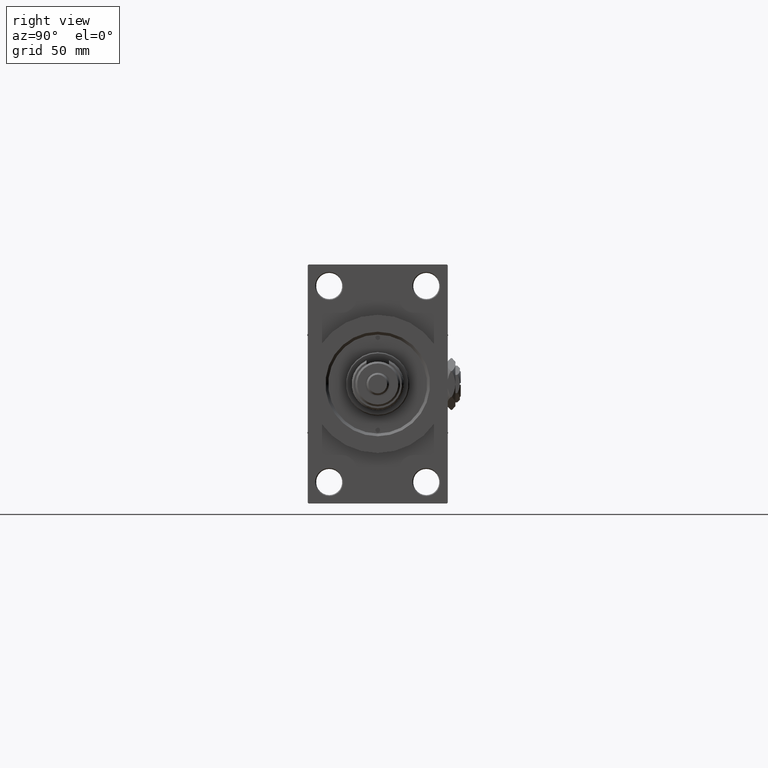
[diagram: clean part render]
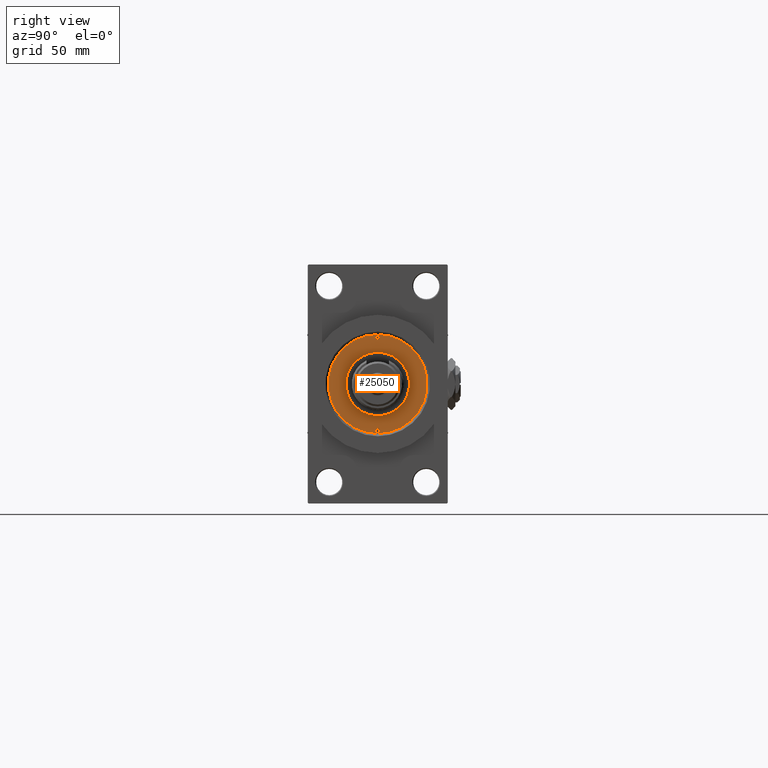
[diagram: same view with one face highlighted and labeled with its STEP entity id]
A machine part, right view. The second image highlights one B-rep face of the part: STEP entity #25050.
In plain terms, the highlighted planar face has unit normal (1, -0, -0).
Its self-contained STEP definition (entity closure, byte-faithful):
#543 = EDGE_CURVE ( 'NONE', #41589, #44311, #1694, .T. ) ;
#905 = DIRECTION ( 'NONE',  ( 1.000000000000000000, 0.000000000000000000, 0.000000000000000000 ) ) ;
#980 = FACE_BOUND ( 'NONE', #10812, .T. ) ;
#1534 = CIRCLE ( 'NONE', #45495, 26.50000000000000355 ) ;
#1694 = CIRCLE ( 'NONE', #27888, 1.249999999999997558 ) ;
#2315 = CARTESIAN_POINT ( 'NONE',  ( 0.000000000000000000, 0.000000000000000000, 43.25999999999999801 ) ) ;
#2317 = EDGE_CURVE ( 'NONE', #26832, #45092, #9469, .T. ) ;
#3051 = DIRECTION ( 'NONE',  ( 1.000000000000000000, 0.000000000000000000, -0.000000000000000000 ) ) ;
#3131 = EDGE_CURVE ( 'NONE', #48489, #36124, #19834, .T. ) ;
#3442 = EDGE_LOOP ( 'NONE', ( #16497, #11260 ) ) ;
#4424 = AXIS2_PLACEMENT_3D ( 'NONE', #38510, #43288, #3051 ) ;
#4874 = DIRECTION ( 'NONE',  ( 0.000000000000000000, 0.000000000000000000, 1.000000000000000000 ) ) ;
#4949 = FACE_BOUND ( 'NONE', #18753, .T. ) ;
#6784 = DIRECTION ( 'NONE',  ( -0.000000000000000000, -0.000000000000000000, 1.000000000000000000 ) ) ;
#7051 = CARTESIAN_POINT ( 'NONE',  ( -24.75000000000000000, 0.000000000000000000, 43.25999999999999801 ) ) ;
#8519 = AXIS2_PLACEMENT_3D ( 'NONE', #19955, #36088, #15995 ) ;
#9318 = ORIENTED_EDGE ( 'NONE', *, *, #38901, .T. ) ;
#9469 = CIRCLE ( 'NONE', #12002, 17.00000000000000000 ) ;
#10812 = EDGE_LOOP ( 'NONE', ( #49243, #49070 ) ) ;
#11260 = ORIENTED_EDGE ( 'NONE', *, *, #40922, .F. ) ;
#12002 = AXIS2_PLACEMENT_3D ( 'NONE', #13666, #33261, #45403 ) ;
#13150 = PLANE ( 'NONE',  #4424 ) ;
#13666 = CARTESIAN_POINT ( 'NONE',  ( 0.000000000000000000, 0.000000000000000000, 43.25999999999999801 ) ) ;
#15995 = DIRECTION ( 'NONE',  ( 1.000000000000000000, 0.000000000000000000, 0.000000000000000000 ) ) ;
#16095 = EDGE_CURVE ( 'NONE', #44311, #41589, #43926, .T. ) ;
#16497 = ORIENTED_EDGE ( 'NONE', *, *, #3131, .F. ) ;
#16893 = AXIS2_PLACEMENT_3D ( 'NONE', #24427, #19647, #40010 ) ;
#16981 = EDGE_LOOP ( 'NONE', ( #33702, #9318 ) ) ;
#17389 = CARTESIAN_POINT ( 'NONE',  ( -17.00000000000000000, 0.000000000000000000, 43.25999999999999801 ) ) ;
#17634 = VERTEX_POINT ( 'NONE', #44613 ) ;
#18587 = EDGE_CURVE ( 'NONE', #45092, #26832, #32195, .T. ) ;
#18753 = EDGE_LOOP ( 'NONE', ( #46582, #48763 ) ) ;
#19647 = DIRECTION ( 'NONE',  ( -0.000000000000000000, -0.000000000000000000, 1.000000000000000000 ) ) ;
#19785 = DIRECTION ( 'NONE',  ( 1.000000000000000000, 0.000000000000000000, 0.000000000000000000 ) ) ;
#19834 = CIRCLE ( 'NONE', #43520, 1.249999999999997558 ) ;
#19955 = CARTESIAN_POINT ( 'NONE',  ( 0.000000000000000000, 0.000000000000000000, 43.25999999999999801 ) ) ;
#20586 = CARTESIAN_POINT ( 'NONE',  ( -24.75000000000000000, 0.000000000000000000, 43.25999999999999801 ) ) ;
#22925 = DIRECTION ( 'NONE',  ( 1.000000000000000000, 0.000000000000000000, 0.000000000000000000 ) ) ;
#23194 = DIRECTION ( 'NONE',  ( -0.000000000000000000, -0.000000000000000000, 1.000000000000000000 ) ) ;
#24191 = CARTESIAN_POINT ( 'NONE',  ( 23.50000000000000355, 1.530808498934188612E-16, 43.25999999999999801 ) ) ;
#24427 = CARTESIAN_POINT ( 'NONE',  ( 24.75000000000000000, 0.000000000000000000, 43.25999999999999801 ) ) ;
#25050 = ADVANCED_FACE ( 'NONE', ( #37218, #980, #4949, #33263 ), #13150, .T. ) ;
#25065 = DIRECTION ( 'NONE',  ( -0.000000000000000000, -0.000000000000000000, 1.000000000000000000 ) ) ;
#26832 = VERTEX_POINT ( 'NONE', #50194 ) ;
#27008 = CIRCLE ( 'NONE', #39645, 1.249999999999997558 ) ;
#27888 = AXIS2_PLACEMENT_3D ( 'NONE', #43025, #6784, #22925 ) ;
#28448 = CARTESIAN_POINT ( 'NONE',  ( 0.000000000000000000, 0.000000000000000000, 43.25999999999999801 ) ) ;
#30360 = CARTESIAN_POINT ( 'NONE',  ( 26.00000000000000000, 0.000000000000000000, 43.25999999999999801 ) ) ;
#30647 = DIRECTION ( 'NONE',  ( 1.000000000000000000, 0.000000000000000000, 0.000000000000000000 ) ) ;
#32195 = CIRCLE ( 'NONE', #8519, 17.00000000000000000 ) ;
#33261 = DIRECTION ( 'NONE',  ( 0.000000000000000000, 0.000000000000000000, 1.000000000000000000 ) ) ;
#33263 = FACE_OUTER_BOUND ( 'NONE', #16981, .T. ) ;
#33702 = ORIENTED_EDGE ( 'NONE', *, *, #51294, .T. ) ;
#35605 = CARTESIAN_POINT ( 'NONE',  ( -23.50000000000000355, 0.000000000000000000, 43.25999999999999801 ) ) ;
#36088 = DIRECTION ( 'NONE',  ( 0.000000000000000000, 0.000000000000000000, 1.000000000000000000 ) ) ;
#36124 = VERTEX_POINT ( 'NONE', #46676 ) ;
#36590 = CIRCLE ( 'NONE', #49223, 26.50000000000000355 ) ;
#37218 = FACE_BOUND ( 'NONE', #3442, .T. ) ;
#38510 = CARTESIAN_POINT ( 'NONE',  ( 0.000000000000000000, 0.000000000000000000, 43.25999999999999801 ) ) ;
#38734 = VERTEX_POINT ( 'NONE', #41750 ) ;
#38901 = EDGE_CURVE ( 'NONE', #38734, #17634, #1534, .T. ) ;
#39645 = AXIS2_PLACEMENT_3D ( 'NONE', #7051, #23194, #39830 ) ;
#39830 = DIRECTION ( 'NONE',  ( 1.000000000000000000, 0.000000000000000000, 0.000000000000000000 ) ) ;
#40010 = DIRECTION ( 'NONE',  ( 1.000000000000000000, 0.000000000000000000, 0.000000000000000000 ) ) ;
#40922 = EDGE_CURVE ( 'NONE', #36124, #48489, #27008, .T. ) ;
#41589 = VERTEX_POINT ( 'NONE', #30360 ) ;
#41750 = CARTESIAN_POINT ( 'NONE',  ( 26.50000000000000355, 3.245314017740486554E-15, 43.25999999999999801 ) ) ;
#43025 = CARTESIAN_POINT ( 'NONE',  ( 24.75000000000000000, 0.000000000000000000, 43.25999999999999801 ) ) ;
#43288 = DIRECTION ( 'NONE',  ( 0.000000000000000000, 0.000000000000000000, 1.000000000000000000 ) ) ;
#43520 = AXIS2_PLACEMENT_3D ( 'NONE', #20586, #25065, #19785 ) ;
#43926 = CIRCLE ( 'NONE', #16893, 1.249999999999997558 ) ;
#44311 = VERTEX_POINT ( 'NONE', #24191 ) ;
#44613 = CARTESIAN_POINT ( 'NONE',  ( -26.50000000000000355, 0.000000000000000000, 43.25999999999999801 ) ) ;
#45092 = VERTEX_POINT ( 'NONE', #17389 ) ;
#45403 = DIRECTION ( 'NONE',  ( 1.000000000000000000, 0.000000000000000000, 0.000000000000000000 ) ) ;
#45495 = AXIS2_PLACEMENT_3D ( 'NONE', #2315, #50734, #30647 ) ;
#46582 = ORIENTED_EDGE ( 'NONE', *, *, #18587, .F. ) ;
#46676 = CARTESIAN_POINT ( 'NONE',  ( -26.00000000000000000, 1.530808498934188612E-16, 43.25999999999999801 ) ) ;
#48489 = VERTEX_POINT ( 'NONE', #35605 ) ;
#48763 = ORIENTED_EDGE ( 'NONE', *, *, #2317, .F. ) ;
#49070 = ORIENTED_EDGE ( 'NONE', *, *, #16095, .F. ) ;
#49223 = AXIS2_PLACEMENT_3D ( 'NONE', #28448, #4874, #905 ) ;
#49243 = ORIENTED_EDGE ( 'NONE', *, *, #543, .F. ) ;
#50194 = CARTESIAN_POINT ( 'NONE',  ( 17.00000000000000000, 2.081899558550500280E-15, 43.25999999999999801 ) ) ;
#50734 = DIRECTION ( 'NONE',  ( 0.000000000000000000, 0.000000000000000000, 1.000000000000000000 ) ) ;
#51294 = EDGE_CURVE ( 'NONE', #17634, #38734, #36590, .T. ) ;